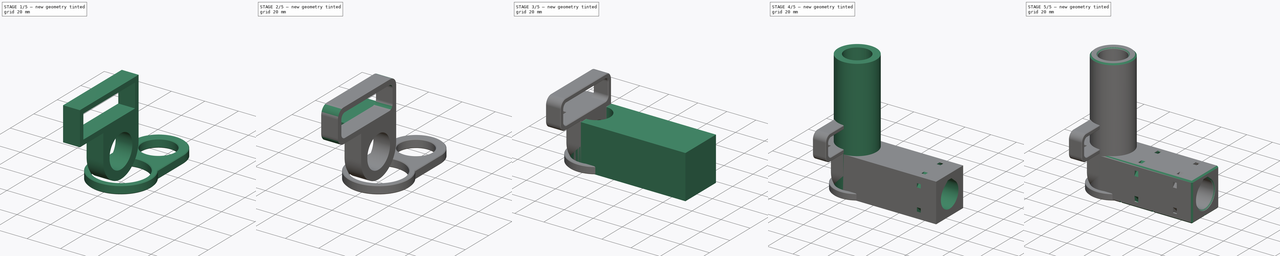
[diagram: build sequence overview — one tinted view per stage of 5, left to right]
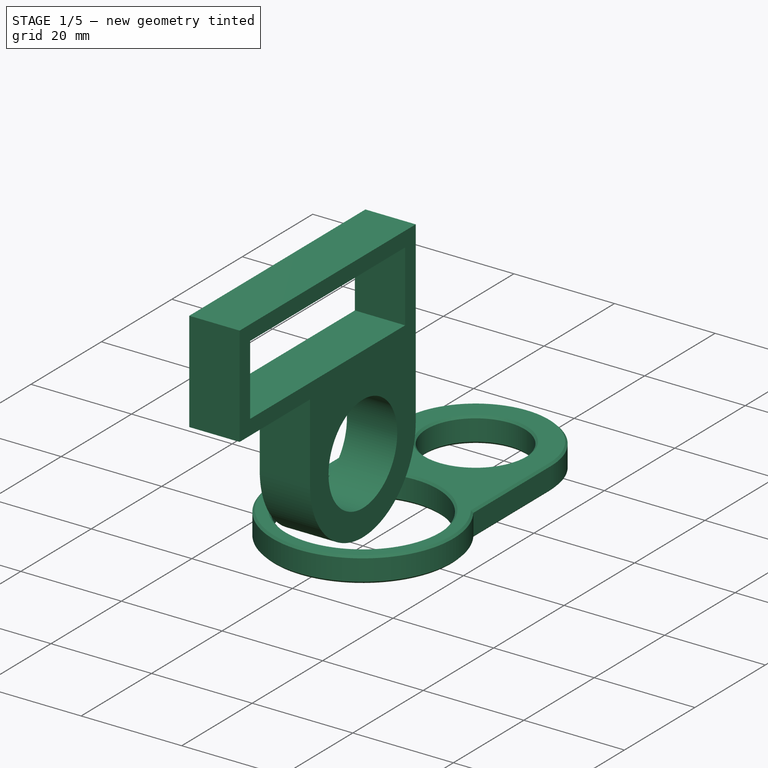
[diagram: stage 1 of 5 — iso view after this stage's code; geometry added in this stage tinted green]
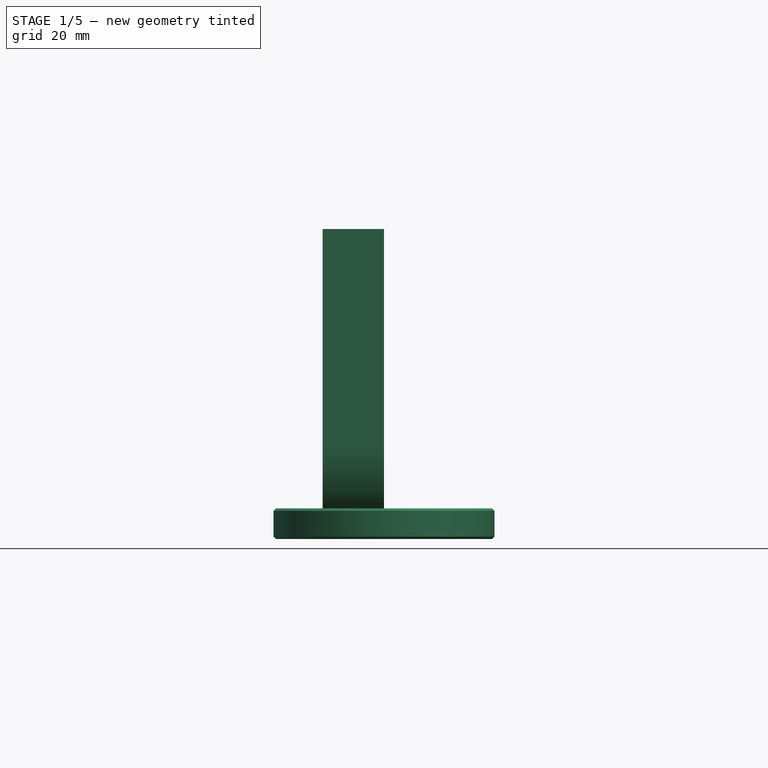
[diagram: stage 1 of 5 — front view after this stage's code; geometry added in this stage tinted green]
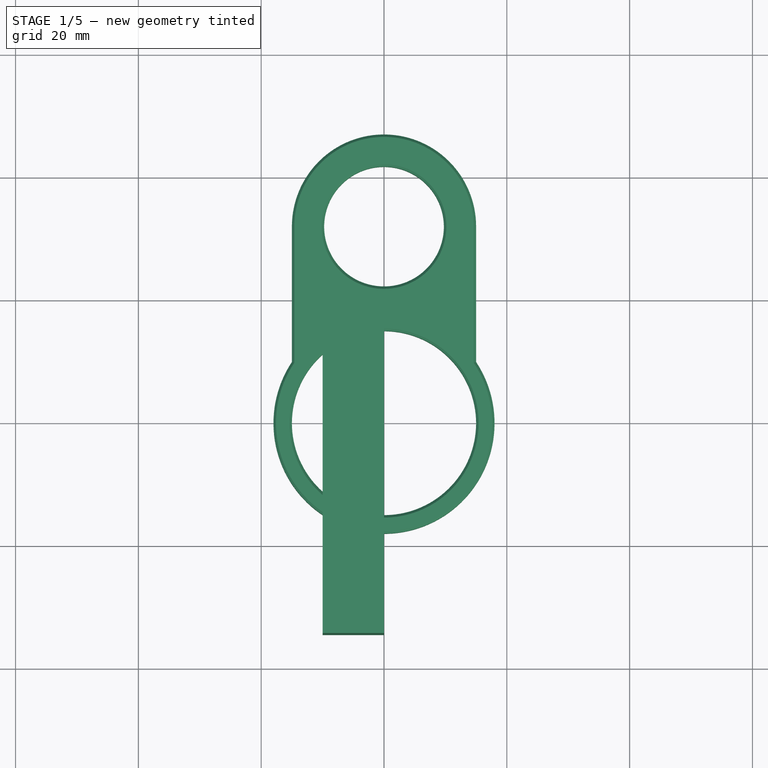
[diagram: stage 1 of 5 — top view after this stage's code; geometry added in this stage tinted green]
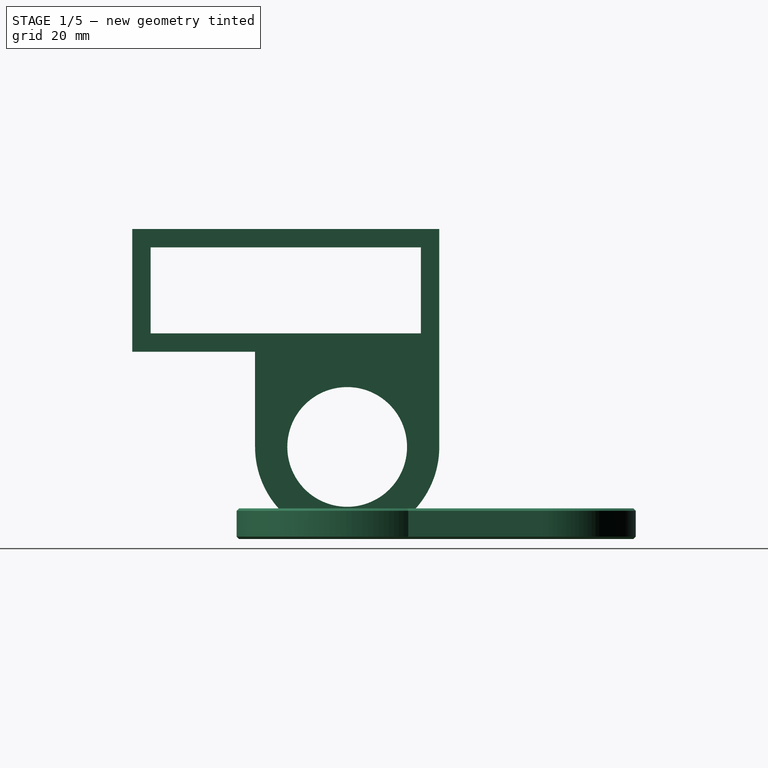
[diagram: stage 1 of 5 — right view after this stage's code; geometry added in this stage tinted green]
FCSTD DOCUMENT  (FreeCAD 0.19R24291 (Git))
Label: sever-rack-pipe-connector
License: Other
LicenseURL: GPL3
objects: Sketcher::SketchObject×8, PartDesign::Pad×5, PartDesign::Pocket×3, PartDesign::Chamfer×3, PartDesign::Body×3, PartDesign::Fillet×3, PartDesign::Plane×1, PartDesign::LinearPattern×1
note: 41 computed .brp shape members not serialized (recipe doc carries the construction recipe); baked Part::Feature solids carry a one-line shape summary decoded from their .brp

FEATURE [PartDesign::Body] Body
  Group = -> [Sketch,Pad,Sketch001,Pocket,Sketch005,Pad002,DatumPlane,Sketch006,Pocket001,LinearPattern,Sketch007,Pocket002,Chamfer]
  Origin = -> Origin
  Tip = -> Chamfer
FEATURE [Sketcher::SketchObject] Sketch008
  FullyConstrained = true
  MapMode = 5
  Placement = pos=(0,0,0) rot=(0.57735,0.57735,0.57735;2.0944rad)
  Support = -> [YZ_Plane001]
  sketch-geometry (11):
    g0: ArcOfCircle CenterX=0 CenterY=15 CenterZ=0 NormalX=0 NormalY=0 NormalZ=1 AngleXU=0 Radius=15 StartAngle=3.14159 EndAngle=6.28319
    g1: Circle CenterX=0 CenterY=15 CenterZ=0 NormalX=0 NormalY=0 NormalZ=1 AngleXU=0 Radius=9.75
    g2: LineSegment StartX=-15 StartY=15 StartZ=0 EndX=-15 EndY=30.5 EndZ=0
    g3: LineSegment StartX=-15 StartY=30.5 StartZ=0 EndX=-35 EndY=30.5 EndZ=0
    g4: LineSegment StartX=-35 StartY=30.5 StartZ=0 EndX=-35 EndY=50.5 EndZ=0
    g5: LineSegment StartX=-35 StartY=50.5 StartZ=0 EndX=15 EndY=50.5 EndZ=0
    g6: LineSegment StartX=15 StartY=50.5 StartZ=0 EndX=15 EndY=15 EndZ=0
    g7: LineSegment StartX=-32 StartY=47.5 StartZ=0 EndX=12 EndY=47.5 EndZ=0
    g8: LineSegment StartX=12 StartY=47.5 StartZ=0 EndX=12 EndY=33.5 EndZ=0
    g9: LineSegment StartX=12 StartY=33.5 StartZ=0 EndX=-32 EndY=33.5 EndZ=0
    g10: LineSegment StartX=-32 StartY=33.5 StartZ=0 EndX=-32 EndY=47.5 EndZ=0
  constraints (33):
    c: PointOnObject(g0,g-2)
    c: Coincident(g1,g0)
    c: Radius(g1) = 9.75
    c: Radius(g0) = 15
    c: DistanceY(g-1,g0) = 15
    c: Vertical(g2)
    c: Coincident(g2,g3)
    c: Horizontal(g3)
    c: Coincident(g3,g4)
    c: Vertical(g4)
    c: Coincident(g4,g5)
    c: Horizontal(g5)
    c: Vertical(g6)
    c: Horizontal(g2,g0)
    c: Horizontal(g0,g6)
    c: DistanceY(g2,g2) = 15.5
    c: DistanceX(g3,g3) = 20
    c: Coincident(g5,g6)
    c: DistanceY(g4,g4) = 20
    c: Coincident(g0,g2)
    c: Coincident(g0,g6)
    c: Coincident(g7,g8)
    c: Coincident(g8,g9)
    c: Coincident(g9,g10)
    c: Coincident(g10,g7)
    c: Horizontal(g7)
    c: Horizontal(g9)
    c: Vertical(g8)
    c: Vertical(g10)
    c: DistanceX(g3,g9) = 3
    c: DistanceX(g7,g5) = 3
    c: DistanceY(g7,g4) = 3
    c: DistanceY(g3,g9) = 3
FEATURE [PartDesign::Pad] Pad003
  Direction = (1,1,1)
  Length = 10
  Length2 = 100
  Placement = pos=(0,0,0) rot=(0.57735,0.57735,0.57735;2.0944rad)
  Profile = -> Sketch008
  Reversed = true
  Type = 0
FEATURE [PartDesign::Body] Body001
  Group = -> [Sketch008,Pad003,Fillet,Fillet001,Sketch009,Pad004,Fillet002,Chamfer001]
  Origin = -> Origin001
  Placement = pos=(82,0,0) rot=(0,0,1;0rad)
  Tip = -> Chamfer001
FEATURE [Sketcher::SketchObject] Sketch010
  FullyConstrained = false
  MapMode = 5
  Support = -> [XY_Plane002]
  sketch-geometry (6):
    g0: Circle CenterX=0 CenterY=32 CenterZ=0 NormalX=0 NormalY=0 NormalZ=1 AngleXU=0 Radius=9.75
    g1: ArcOfCircle CenterX=0 CenterY=0 CenterZ=0 NormalX=0 NormalY=0 NormalZ=1 AngleXU=0 Radius=18 StartAngle=2.55591 EndAngle=6.86887
    g2: Circle CenterX=0 CenterY=0 CenterZ=0 NormalX=0 NormalY=0 NormalZ=1 AngleXU=0 Radius=15
    g3: LineSegment StartX=-15 StartY=32 StartZ=0 EndX=-15 EndY=9.94987 EndZ=0
    g4: LineSegment StartX=15 StartY=32 StartZ=0 EndX=15 EndY=9.94987 EndZ=0
    g5: ArcOfCircle CenterX=0 CenterY=32 CenterZ=0 NormalX=0 NormalY=0 NormalZ=1 AngleXU=0 Radius=15 StartAngle=0 EndAngle=3.14159
  constraints (13):
    c: Radius(g0) = 9.75
    c: PointOnObject(g1,g-2)
    c: Coincident(g2,g1)
    c: Radius(g2) = 15
    c: Radius(g1) = 18
    c: DistanceY(g-1,g1) = 0
    c: Vertical(g3)
    c: Vertical(g4)
    c: Horizontal(g3,g4)
    c: Coincident(g5,g3) = -1.5708
    c: Coincident(g5,g4)
    c: Coincident(g1,g4)
    c: Coincident(g1,g3)
FEATURE [PartDesign::Pad] Pad005
  Direction = (1,1,1)
  Length = 5
  Length2 = 100
  Profile = -> Sketch010
  Type = 0
FEATURE [PartDesign::Chamfer] Chamfer002
  Angle = 45
  Base = -> Pad005 [Face8,Face7]
  BaseFeature = -> Pad005
  ChamferType = 0
  FlipDirection = false
  Size = 0.4
  Size2 = 1
  SupportTransform = false
FEATURE [PartDesign::Body] Body002
  Group = -> [Sketch010,Pad005,Chamfer002]
  Origin = -> Origin002
  Tip = -> Chamfer002
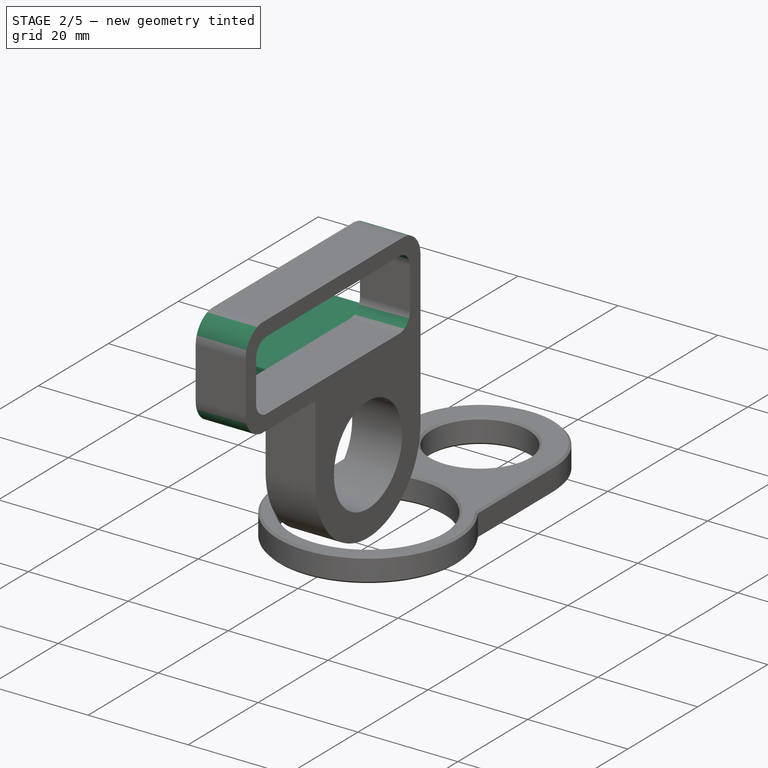
[diagram: stage 2 of 5 — iso view after this stage's code; geometry added in this stage tinted green]
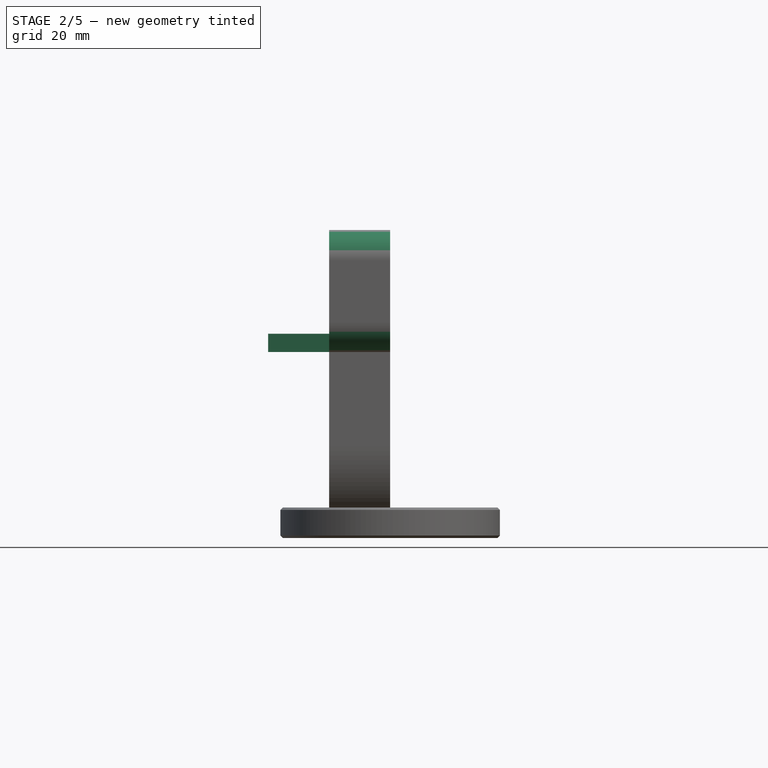
[diagram: stage 2 of 5 — front view after this stage's code; geometry added in this stage tinted green]
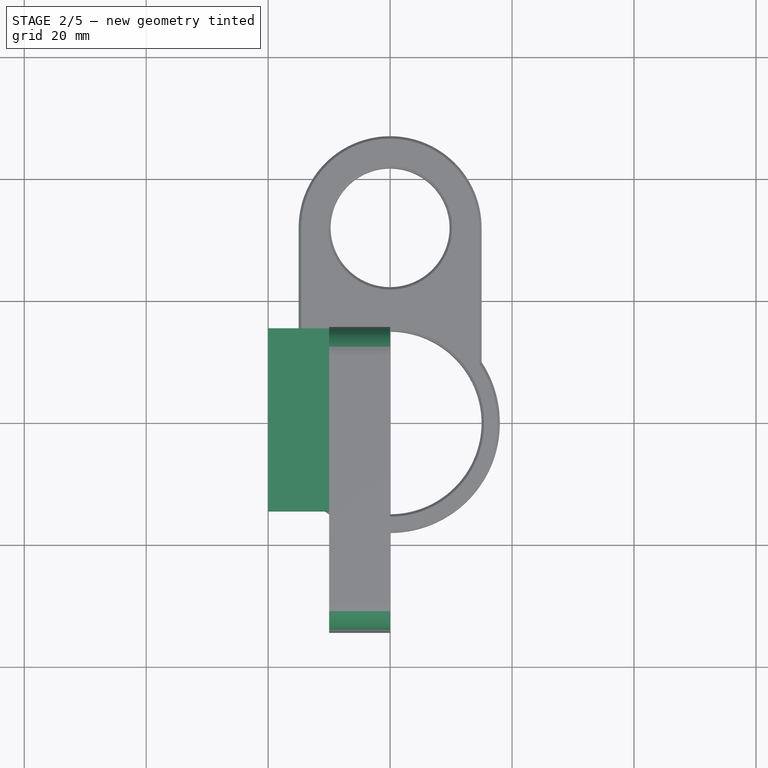
[diagram: stage 2 of 5 — top view after this stage's code; geometry added in this stage tinted green]
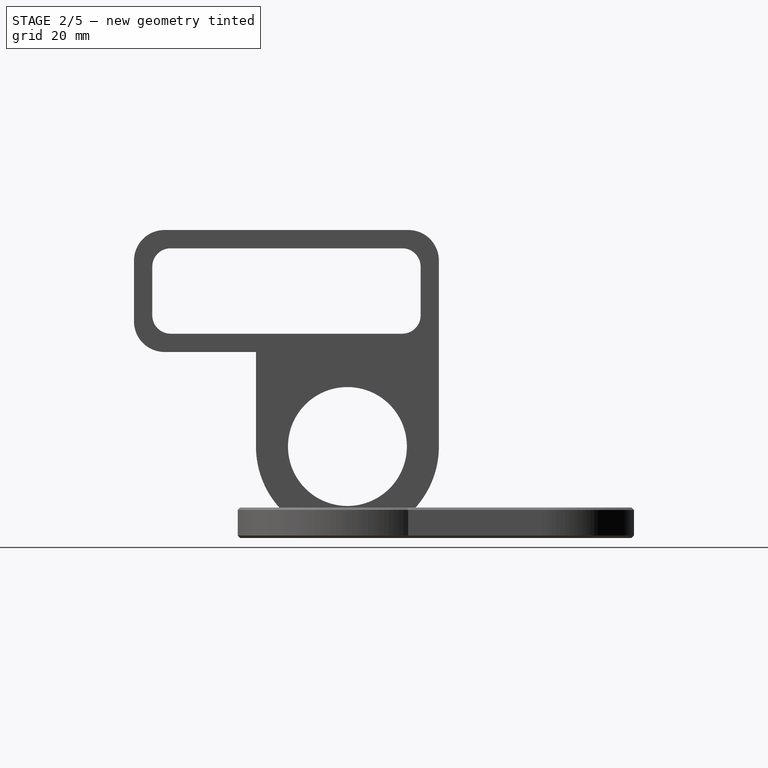
[diagram: stage 2 of 5 — right view after this stage's code; geometry added in this stage tinted green]
FEATURE [PartDesign::Fillet] Fillet
  Base = -> Pad003 [Edge19,Edge20,Edge23,Edge26]
  BaseFeature = -> Pad003
  Placement = pos=(0,0,0) rot=(0.57735,0.57735,0.57735;2.0944rad)
  Radius = 3
  SupportTransform = false
FEATURE [PartDesign::Fillet] Fillet001
  Base = -> Fillet [Edge42,Edge43,Edge44]
  BaseFeature = -> Fillet
  Placement = pos=(0,0,0) rot=(0.57735,0.57735,0.57735;2.0944rad)
  Radius = 5
  SupportTransform = false
FEATURE [Sketcher::SketchObject] Sketch009
  FullyConstrained = true
  MapMode = 5
  Placement = pos=(-10,4.4e-15,-3.3e-15) rot=(0.57735,0.57735,-0.57735;4.18879rad)
  Support = -> [Fillet001]
  sketch-geometry (4):
    g0: LineSegment StartX=-15 StartY=-30.5 StartZ=0 EndX=15 EndY=-30.5 EndZ=0
    g1: LineSegment StartX=15 StartY=-30.5 StartZ=0 EndX=15 EndY=-33.5 EndZ=0
    g2: LineSegment StartX=15 StartY=-33.5 StartZ=0 EndX=-15 EndY=-33.5 EndZ=0
    g3: LineSegment StartX=-15 StartY=-33.5 StartZ=0 EndX=-15 EndY=-30.5 EndZ=0
  constraints (12):
    c: Coincident(g0,g1)
    c: Coincident(g1,g2)
    c: Coincident(g2,g3)
    c: Coincident(g3,g0)
    c: Horizontal(g0)
    c: Horizontal(g2)
    c: Vertical(g1)
    c: Vertical(g3)
    c: DistanceY(g1,g1) = 3
    c: DistanceX(g0,g0) = 30
    c: DistanceX(g0,g-1) = 15
    c: DistanceY(g0,g-1) = 30.5
FEATURE [PartDesign::Pad] Pad004
  BaseFeature = -> Fillet001
  Direction = (1,1,1)
  Length = 10
  Length2 = 100
  Placement = pos=(0,0,0) rot=(0.57735,0.57735,0.57735;2.0944rad)
  Profile = -> Sketch009
  Type = 0
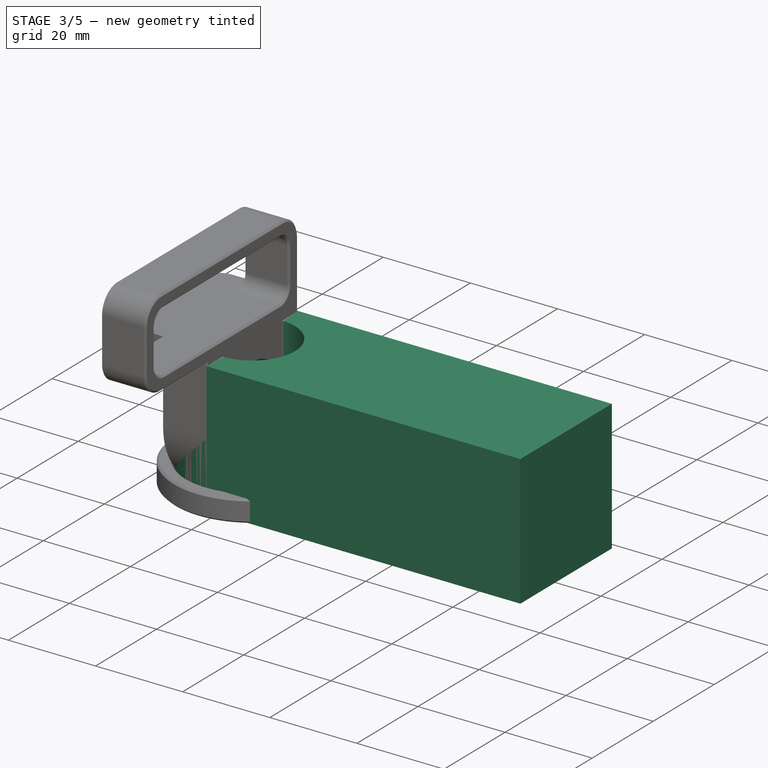
[diagram: stage 3 of 5 — iso view after this stage's code; geometry added in this stage tinted green]
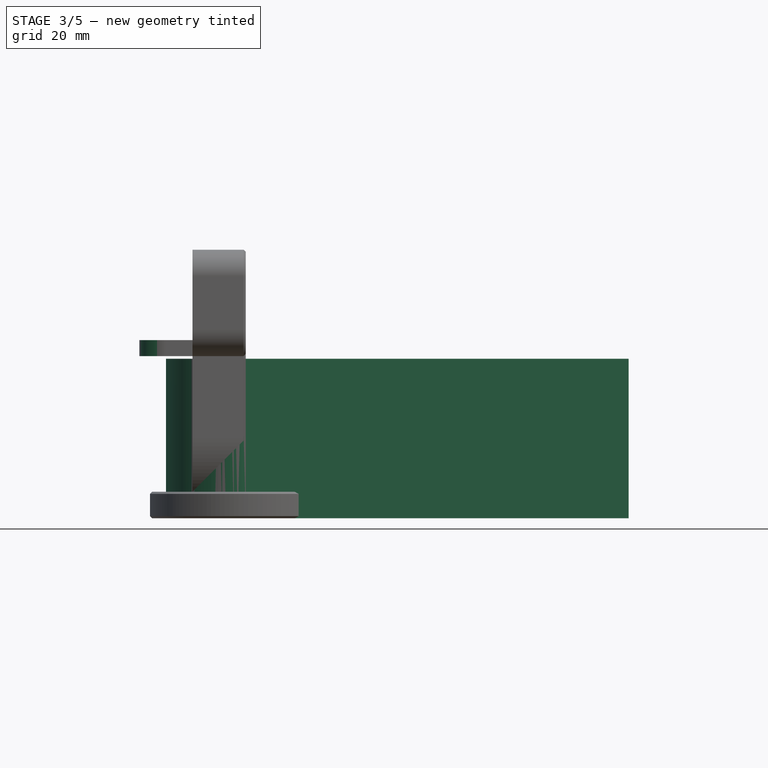
[diagram: stage 3 of 5 — front view after this stage's code; geometry added in this stage tinted green]
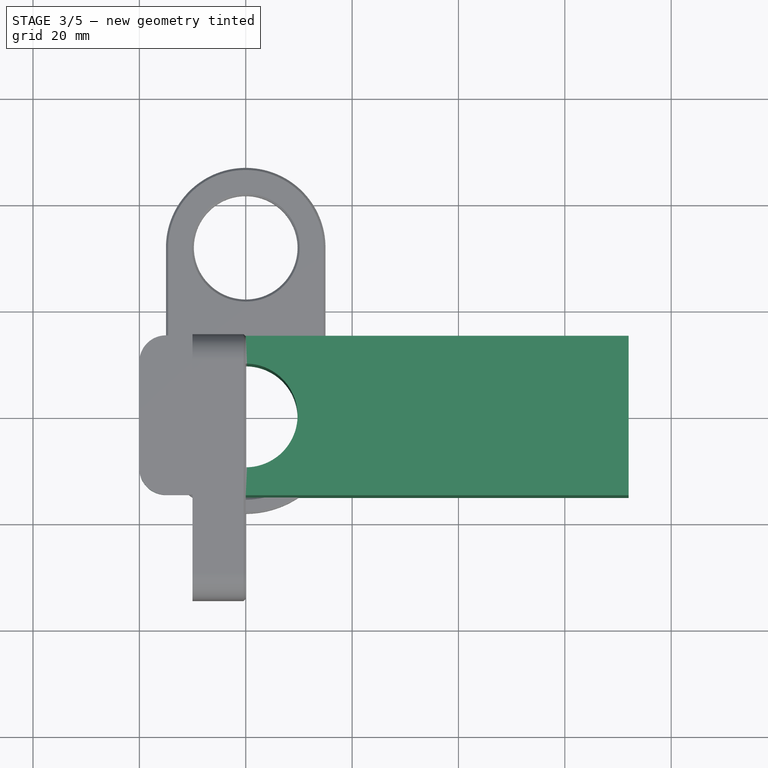
[diagram: stage 3 of 5 — top view after this stage's code; geometry added in this stage tinted green]
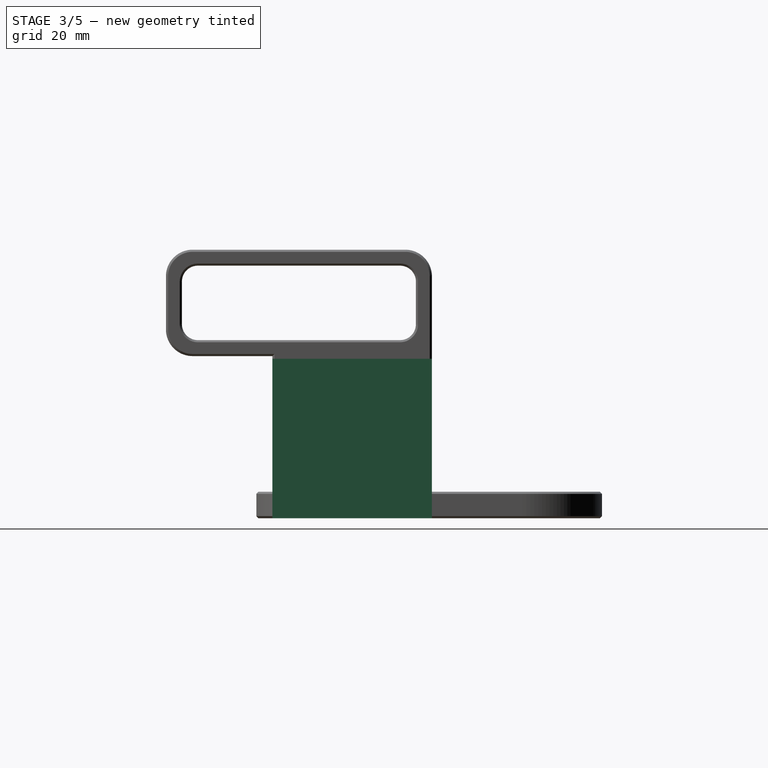
[diagram: stage 3 of 5 — right view after this stage's code; geometry added in this stage tinted green]
FEATURE [Sketcher::SketchObject] Sketch
  FullyConstrained = true
  MapMode = 5
  Support = -> [XY_Plane]
  sketch-geometry (5):
    g0: Circle CenterX=0 CenterY=0 CenterZ=0 NormalX=0 NormalY=0 NormalZ=1 AngleXU=0 Radius=9.75
    g1: ArcOfCircle CenterX=0 CenterY=0 CenterZ=0 NormalX=0 NormalY=0 NormalZ=1 AngleXU=0 Radius=15 StartAngle=1.5708 EndAngle=4.71239
    g2: LineSegment StartX=0 StartY=15 StartZ=0 EndX=72 EndY=15 EndZ=0
    g3: LineSegment StartX=72 StartY=15 StartZ=0 EndX=72 EndY=-15 EndZ=0
    g4: LineSegment StartX=72 StartY=-15 StartZ=0 EndX=0 EndY=-15 EndZ=0
  constraints (13):
    c: Coincident(g0,g-1)
    c: Radius(g0) = 9.75
    c: Coincident(g1,g0)
    c: Vertical(g1,g0)
    c: Vertical(g0,g1)
    c: DistanceY(g1,g0) = 15
    c: Tangent(g1,g2) = 1.5708
    c: Coincident(g2,g3)
    c: Vertical(g3)
    c: Coincident(g3,g4)
    c: Coincident(g4,g1)
    c: Horizontal(g4)
    c: DistanceX(g2,g2) = 72
FEATURE [PartDesign::Pad] Pad
  Direction = (1,1,1)
  Length = 30
  Length2 = 100
  Profile = -> Sketch
  Type = 0
FEATURE [PartDesign::Fillet] Fillet002
  Base = -> Pad004 [Edge62,Edge67]
  BaseFeature = -> Pad004
  Placement = pos=(0,0,0) rot=(0.57735,0.57735,0.57735;2.0944rad)
  Radius = 5
  SupportTransform = false
FEATURE [PartDesign::Chamfer] Chamfer001
  Angle = 45
  Base = -> Fillet002 [Face10,Edge27]
  BaseFeature = -> Fillet002
  ChamferType = 0
  FlipDirection = false
  Placement = pos=(0,0,0) rot=(0.57735,0.57735,0.57735;2.0944rad)
  Size = 0.4
  Size2 = 1
  SupportTransform = false
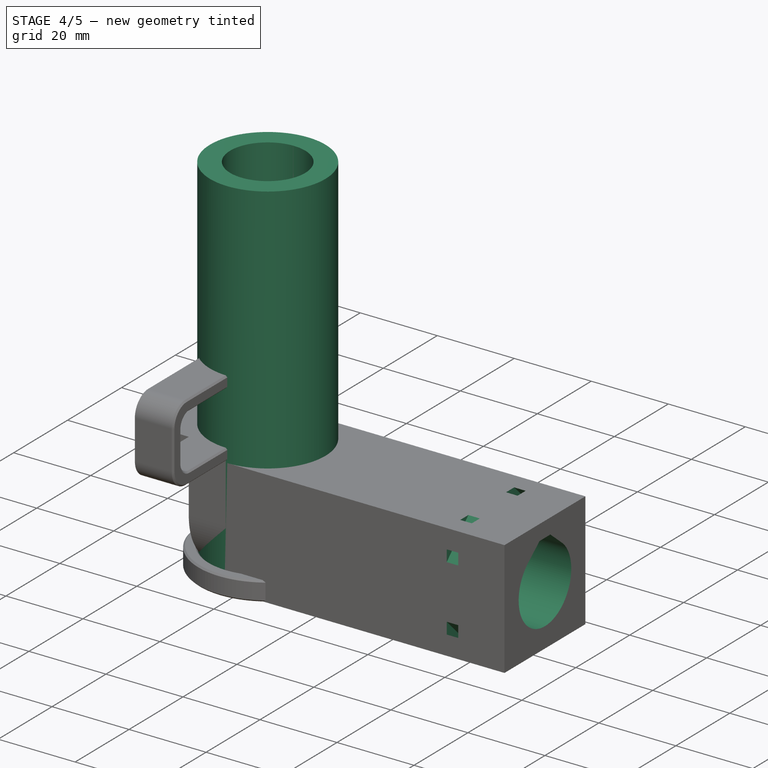
[diagram: stage 4 of 5 — iso view after this stage's code; geometry added in this stage tinted green]
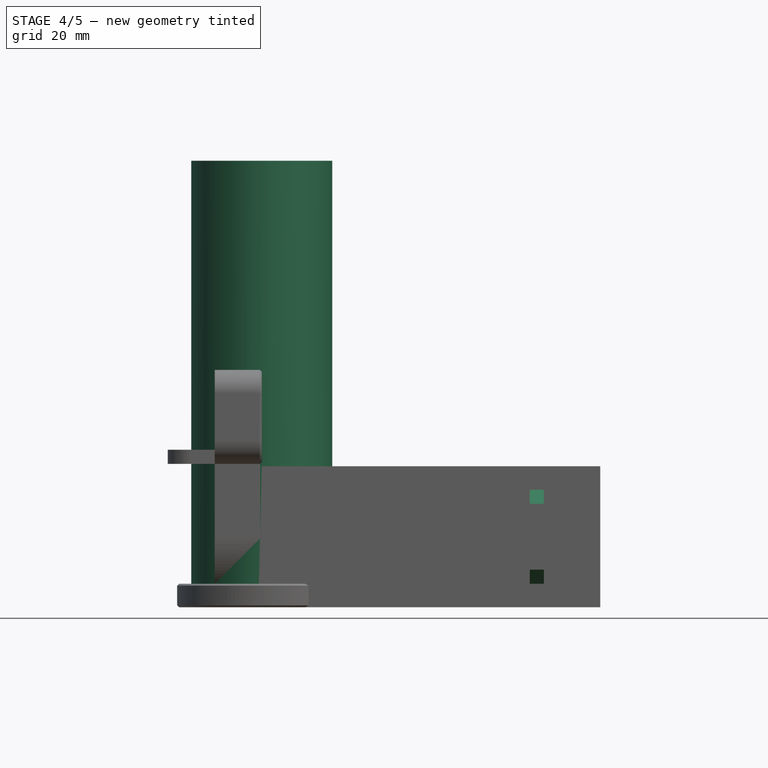
[diagram: stage 4 of 5 — front view after this stage's code; geometry added in this stage tinted green]
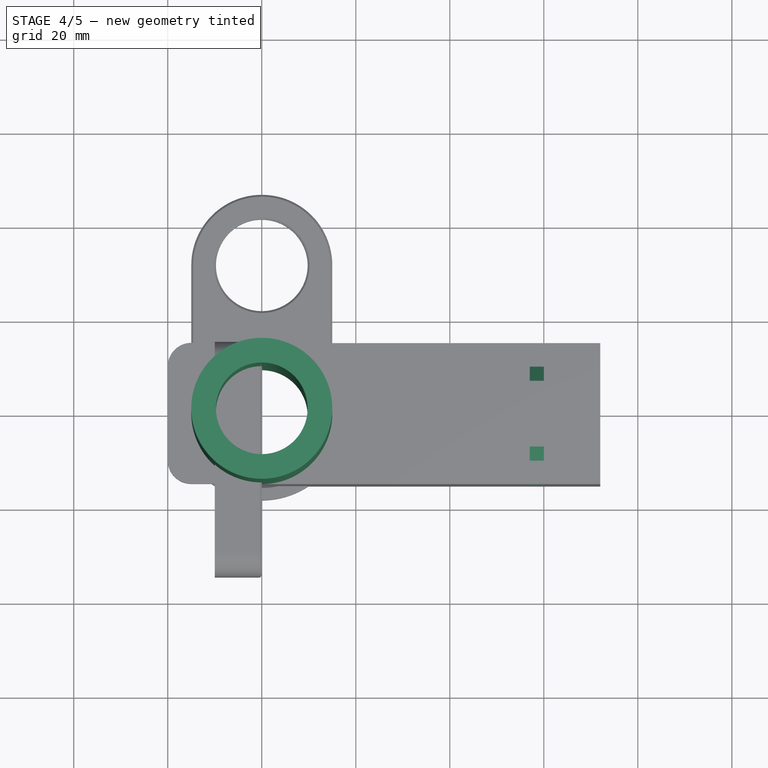
[diagram: stage 4 of 5 — top view after this stage's code; geometry added in this stage tinted green]
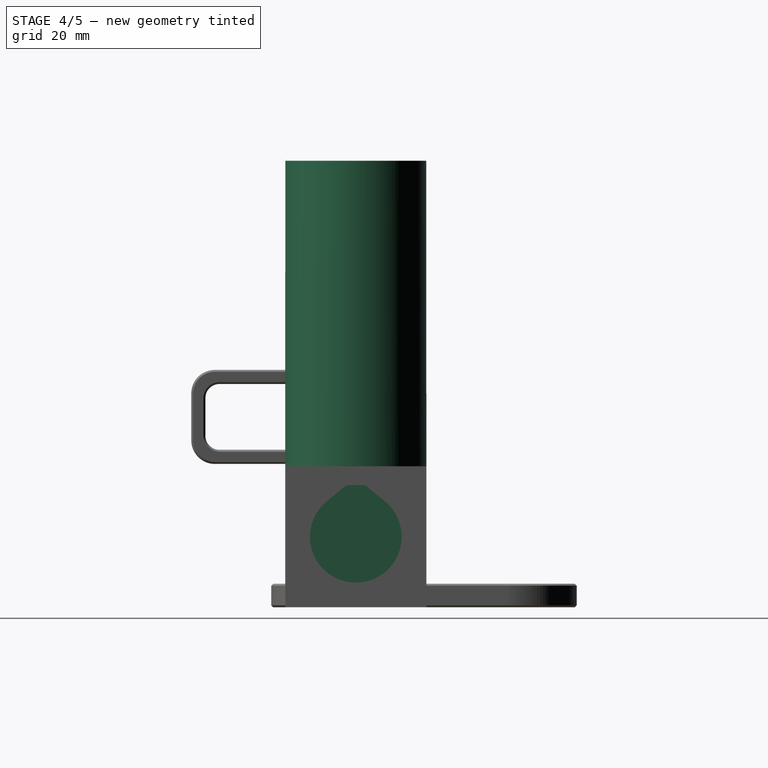
[diagram: stage 4 of 5 — right view after this stage's code; geometry added in this stage tinted green]
FEATURE [Sketcher::SketchObject] Sketch001
  FullyConstrained = true
  MapMode = 5
  Placement = pos=(72,0,0) rot=(0.57735,0.57735,0.57735;2.0944rad)
  Support = -> [Pad]
  sketch-geometry (4):
    g0: ArcOfCircle CenterX=0 CenterY=15 CenterZ=0 NormalX=0 NormalY=0 NormalZ=1 AngleXU=0 Radius=9.75 StartAngle=2.26204 EndAngle=7.16274
    g1: LineSegment StartX=-2 StartY=26 StartZ=0 EndX=2 EndY=26 EndZ=0
    g2: LineSegment StartX=-2 StartY=26 StartZ=0 EndX=-6.21556 EndY=22.5119 EndZ=0
    g3: LineSegment StartX=2 StartY=26 StartZ=0 EndX=6.21556 EndY=22.5119 EndZ=0
  constraints (11):
    c: PointOnObject(g0,g-2)
    c: DistanceY(g-1,g0) = 15
    c: Radius(g0) = 9.75
    c: Horizontal(g1)
    c: DistanceX(g1,g0) = 2
    c: DistanceX(g0,g1) = 2
    c: Coincident(g2,g1)
    c: Coincident(g3,g1)
    c: DistanceY(g0,g1) = 11
    c: Tangent(g0,g2) = -1.5708
    c: Tangent(g0,g3) = 1.5708
FEATURE [PartDesign::Pocket] Pocket
  BaseFeature = -> Pad
  Length = 55
  Length2 = 100
  Profile = -> Sketch001
  Type = 0
FEATURE [Sketcher::SketchObject] Sketch005
  FullyConstrained = true
  MapMode = 5
  Placement = pos=(0,0,30) rot=(0,0,1;0rad)
  Support = -> [Pocket]
  sketch-geometry (2):
    g0: Circle CenterX=0 CenterY=0 CenterZ=0 NormalX=0 NormalY=0 NormalZ=1 AngleXU=0 Radius=9.75
    g1: Circle CenterX=0 CenterY=0 CenterZ=0 NormalX=0 NormalY=0 NormalZ=1 AngleXU=0 Radius=15
  constraints (4):
    c: Coincident(g0,g-1)
    c: Coincident(g1,g0)
    c: Radius(g0) = 9.75
    c: Radius(g1) = 15
FEATURE [PartDesign::Pad] Pad002
  BaseFeature = -> Pocket
  Direction = (1,1,1)
  Length = 65
  Length2 = 100
  Profile = -> Sketch005
  Refine = true
  Type = 0
FEATURE [PartDesign::Plane] DatumPlane
  AttachmentOffset = pos=(0,0,60) rot=(0,0,1;0rad)
  Length = 65.4919
  MapMode = 5
  Placement = pos=(60,-1.33e-14,1.33e-14) rot=(0.57735,0.57735,0.57735;2.0944rad)
  ResizeMode = 0
  Support = -> [YZ_Plane]
  Width = 135.492
FEATURE [Sketcher::SketchObject] Sketch006
  FullyConstrained = false
  MapMode = 5
  Placement = pos=(60,-1.33e-14,1.33e-14) rot=(0.57735,0.57735,0.57735;2.0944rad)
  Support = -> [DatumPlane]
  sketch-geometry (16):
    g0: LineSegment StartX=10 StartY=0 StartZ=0 EndX=15 EndY=5 EndZ=0
    g1: LineSegment StartX=15 StartY=5 StartZ=0 EndX=15 EndY=8 EndZ=0
    g2: LineSegment StartX=15 StartY=8 StartZ=0 EndX=7 EndY=0 EndZ=0
    g3: LineSegment StartX=7 StartY=0 StartZ=0 EndX=10 EndY=0 EndZ=0
    g4: LineSegment StartX=-10 StartY=0 StartZ=0 EndX=-15 EndY=5 EndZ=0
    g5: LineSegment StartX=-15 StartY=5 StartZ=0 EndX=-15 EndY=8 EndZ=0
    g6: LineSegment StartX=-15 StartY=8 StartZ=0 EndX=-7 EndY=0 EndZ=0
    g7: LineSegment StartX=-7 StartY=0 StartZ=0 EndX=-10 EndY=0 EndZ=0
    g8: LineSegment StartX=10 StartY=30 StartZ=0 EndX=15 EndY=25 EndZ=0
    g9: LineSegment StartX=15 StartY=25 StartZ=0 EndX=15 EndY=22 EndZ=0
    g10: LineSegment StartX=15 StartY=22 StartZ=0 EndX=7 EndY=30 EndZ=0
    g11: LineSegment StartX=7 StartY=30 StartZ=0 EndX=10 EndY=30 EndZ=0
    g12: LineSegment StartX=-15 StartY=25 StartZ=0 EndX=-10 EndY=30 EndZ=0
    g13: LineSegment StartX=-10 StartY=30 StartZ=0 EndX=-7 EndY=30 EndZ=0
    g14: LineSegment StartX=-7 StartY=30 StartZ=0 EndX=-15 EndY=22 EndZ=0
    g15: LineSegment StartX=-15 StartY=22 StartZ=0 EndX=-15 EndY=25 EndZ=0
  constraints (26):
    c: PointOnObject(g0,g-1)
    c: Coincident(g0,g1)
    c: Vertical(g1)
    c: Coincident(g1,g2)
    c: Coincident(g2,g3)
    c: PointOnObject(g3,g-1)
    c: Horizontal(g3)
    c: PointOnObject(g4,g-1)
    c: Coincident(g4,g5)
    c: Vertical(g5)
    c: Coincident(g5,g6)
    c: PointOnObject(g6,g-1)
    c: Coincident(g6,g7)
    c: Coincident(g7,g4)
    c: Coincident(g8,g9)
    c: Vertical(g9)
    c: Coincident(g9,g10)
    c: Coincident(g10,g11)
    c: Coincident(g11,g8)
    c: Horizontal(g11)
    c: Coincident(g12,g13)
    c: Horizontal(g13)
    c: Coincident(g13,g14)
    c: Coincident(g14,g15)
    c: Coincident(g15,g12)
    c: Vertical(g15)
FEATURE [PartDesign::Pocket] Pocket001
  BaseFeature = -> Pad002
  Length = 3
  Length2 = 100
  Profile = -> Sketch006
  Type = 0
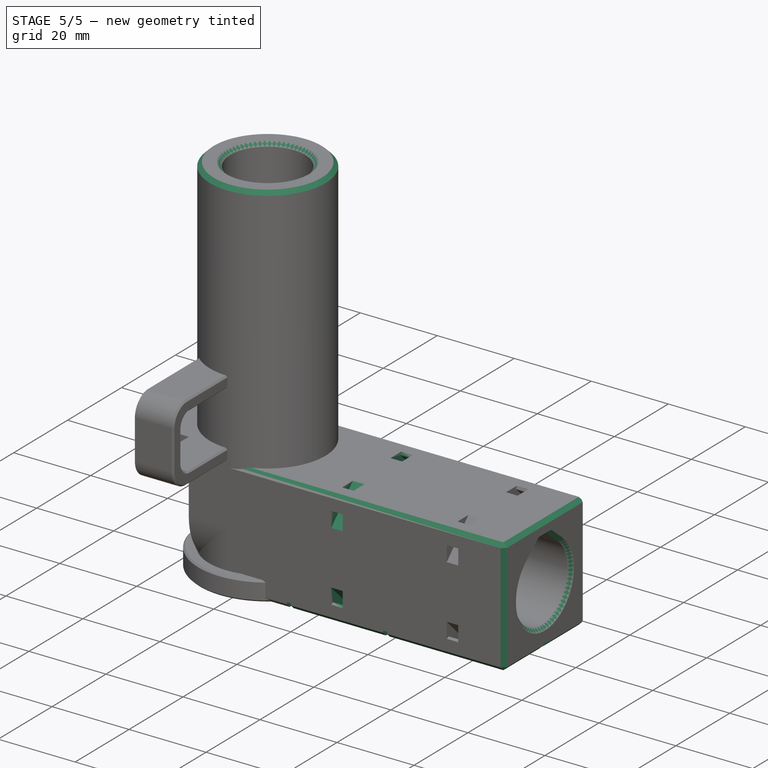
[diagram: stage 5 of 5 — iso view after this stage's code; geometry added in this stage tinted green]
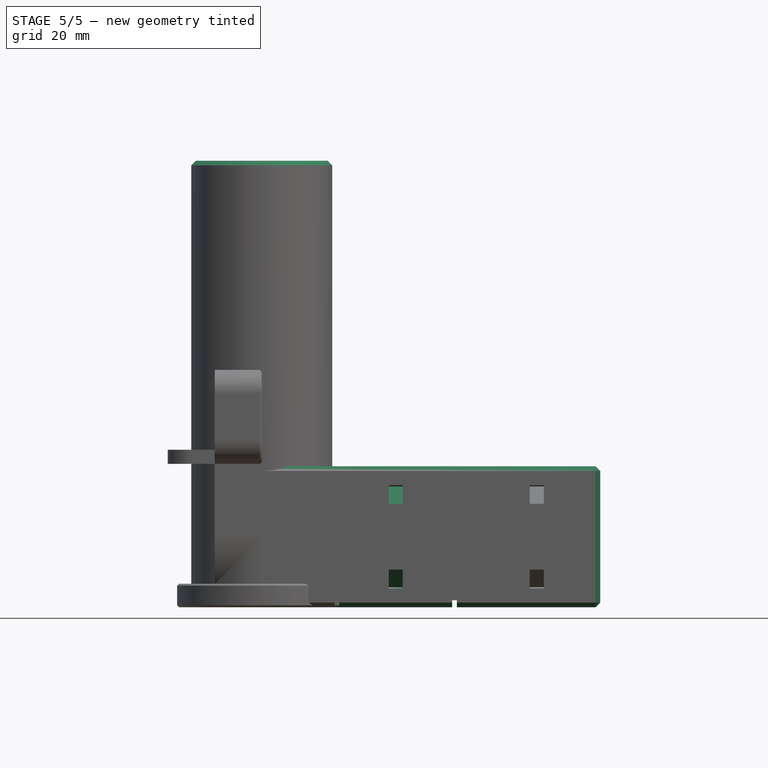
[diagram: stage 5 of 5 — front view after this stage's code; geometry added in this stage tinted green]
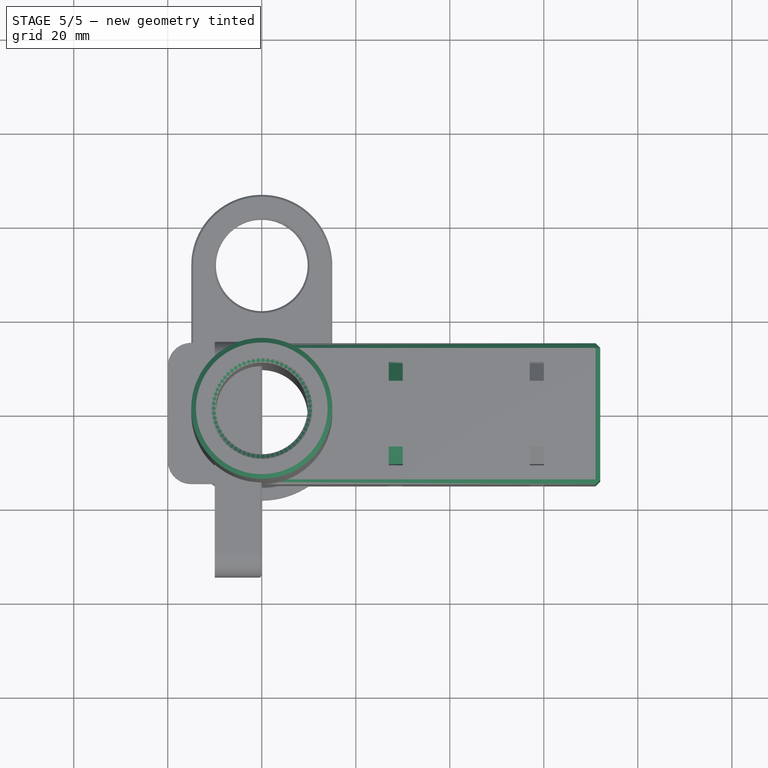
[diagram: stage 5 of 5 — top view after this stage's code; geometry added in this stage tinted green]
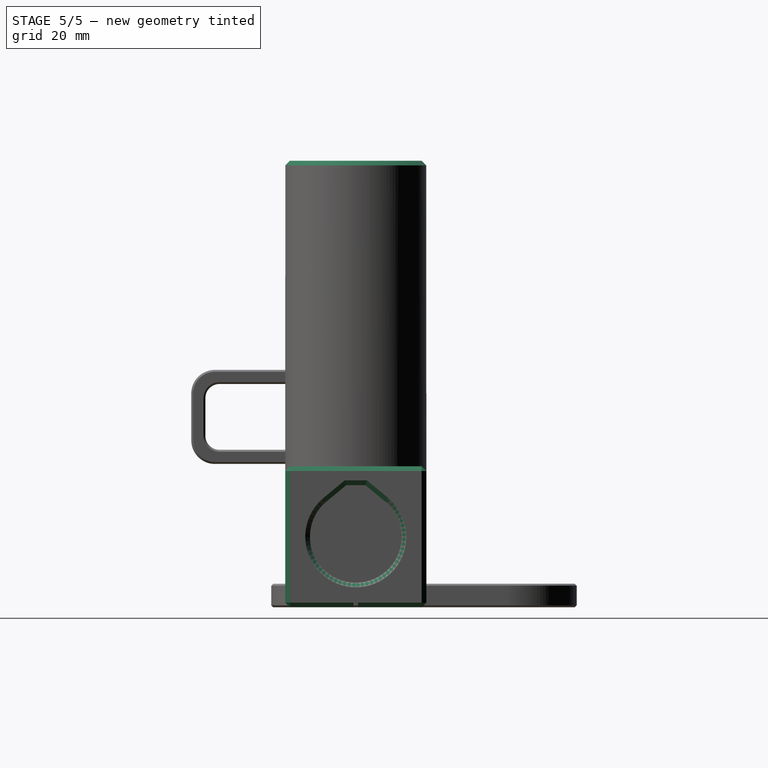
[diagram: stage 5 of 5 — right view after this stage's code; geometry added in this stage tinted green]
FEATURE [PartDesign::LinearPattern] LinearPattern
  BaseFeature = -> Pocket001
  Direction = -> X_Axis
  Length = 30
  Occurrences = 2
  Originals = -> [Pocket001]
  Refine = true
  Reversed = true
FEATURE [Sketcher::SketchObject] Sketch007
  FullyConstrained = false
  MapMode = 5
  Placement = pos=(0,0,0) rot=(1,0,0;3.14159rad)
  Support = -> [LinearPattern]
  sketch-geometry (28):
    g0: LineSegment StartX=-16 StartY=0.5 StartZ=0 EndX=-16 EndY=-0.5 EndZ=0
    g1: LineSegment StartX=-16 StartY=-0.5 StartZ=0 EndX=-0.5 EndY=-0.5 EndZ=0
    g2: LineSegment StartX=-0.5 StartY=-0.5 StartZ=0 EndX=-0.5 EndY=-16 EndZ=0
    g3: LineSegment StartX=-0.5 StartY=-16 StartZ=0 EndX=0.5 EndY=-16 EndZ=0
    g4: LineSegment StartX=0.5 StartY=-16 StartZ=0 EndX=0.5 EndY=-0.5 EndZ=0
    g5: LineSegment StartX=0.5 StartY=-0.5 StartZ=0 EndX=15.5 EndY=-0.5 EndZ=0
    g6: LineSegment StartX=15.5 StartY=-0.5 StartZ=0 EndX=15.5 EndY=-16 EndZ=0
    g7: LineSegment StartX=15.5 StartY=-16 StartZ=0 EndX=16.5 EndY=-16 EndZ=0
    g8: LineSegment StartX=16.5 StartY=-16 StartZ=0 EndX=16.5 EndY=-0.5 EndZ=0
    g9: LineSegment StartX=16.5 StartY=-0.5 StartZ=0 EndX=40.5 EndY=-0.5 EndZ=0
    g10: LineSegment StartX=40.5 StartY=-0.5 StartZ=0 EndX=40.5 EndY=-16 EndZ=0
    g11: LineSegment StartX=40.5 StartY=-16 StartZ=0 EndX=41.5 EndY=-16 EndZ=0
    g12: LineSegment StartX=41.5 StartY=-16 StartZ=0 EndX=41.5 EndY=-0.5 EndZ=0
    g13: LineSegment StartX=41.5 StartY=-0.5 StartZ=0 EndX=72.5 EndY=-0.5 EndZ=0
    g14: LineSegment StartX=72.5 StartY=-0.5 StartZ=0 EndX=72.5 EndY=0.5 EndZ=0
    g15: LineSegment StartX=72.5 StartY=0.5 StartZ=0 EndX=41.5 EndY=0.5 EndZ=0
    g16: LineSegment StartX=41.5 StartY=0.5 StartZ=0 EndX=41.5 EndY=16 EndZ=0
    g17: LineSegment StartX=41.5 StartY=16 StartZ=0 EndX=40.5 EndY=16 EndZ=0
    g18: LineSegment StartX=40.5 StartY=16 StartZ=0 EndX=40.5 EndY=0.5 EndZ=0
    g19: LineSegment StartX=40.5 StartY=0.5 StartZ=0 EndX=16.5 EndY=0.5 EndZ=0
    g20: LineSegment StartX=16.5 StartY=0.5 StartZ=0 EndX=16.5 EndY=16 EndZ=0
    g21: LineSegment StartX=16.5 StartY=16 StartZ=0 EndX=15.5 EndY=16 EndZ=0
    g22: LineSegment StartX=15.5 StartY=16 StartZ=0 EndX=15.5 EndY=0.5 EndZ=0
    g23: LineSegment StartX=15.5 StartY=0.5 StartZ=0 EndX=0.5 EndY=0.5 EndZ=0
    g24: LineSegment StartX=0.5 StartY=0.5 StartZ=0 EndX=0.5 EndY=16 EndZ=0
    g25: LineSegment StartX=0.5 StartY=16 StartZ=0 EndX=-0.5 EndY=16 EndZ=0
    g26: LineSegment StartX=-0.5 StartY=16 StartZ=0 EndX=-0.5 EndY=0.5 EndZ=0
    g27: LineSegment StartX=-0.5 StartY=0.5 StartZ=0 EndX=-16 EndY=0.5 EndZ=0
  constraints (83):
    c: Vertical(g0)
    c: Coincident(g0,g1)
    c: Horizontal(g1)
    c: Coincident(g1,g2)
    c: Vertical(g2)
    c: Coincident(g2,g3)
    c: Horizontal(g3)
    c: Coincident(g3,g4)
    c: Vertical(g4)
    c: Coincident(g4,g5)
    c: Horizontal(g5)
    c: Coincident(g5,g6)
    c: Vertical(g6)
    c: Coincident(g6,g7)
    c: Horizontal(g7)
    c: Coincident(g7,g8)
    c: Vertical(g8)
    c: Coincident(g8,g9)
    c: Horizontal(g9)
    c: Coincident(g9,g10)
    c: Vertical(g10)
    c: Coincident(g10,g11)
    c: Horizontal(g11)
    c: Coincident(g11,g12)
    c: Vertical(g12)
    c: Coincident(g12,g13)
    c: Horizontal(g13)
    c: Coincident(g13,g14)
    c: Vertical(g14)
    c: Coincident(g14,g15)
    c: Horizontal(g15)
    c: Coincident(g15,g16)
    c: Vertical(g16)
    c: Coincident(g16,g17)
    c: Horizontal(g17)
    c: Coincident(g17,g18)
    c: Vertical(g18)
    c: Coincident(g18,g19)
    c: Horizontal(g19)
    c: Coincident(g19,g20)
    c: Vertical(g20)
    c: Coincident(g20,g21)
    c: Horizontal(g21)
    c: Coincident(g21,g22)
    c: Vertical(g22)
    c: Coincident(g22,g23)
    c: Horizontal(g23)
    c: Coincident(g23,g24)
    c: Vertical(g24)
    c: Coincident(g24,g25)
    c: Horizontal(g25)
    c: Coincident(g25,g26)
    c: Vertical(g26)
    c: Coincident(g26,g27)
    c: Coincident(g27,g0)
    c: Horizontal(g27)
    c: Vertical(g1,g26)
    c: Vertical(g4,g23)
    c: Vertical(g5,g22)
    c: Vertical(g19,g8)
    c: Vertical(g9,g18)
    c: Vertical(g12,g15)
    c: Horizontal(g1,g5)
    c: Horizontal(g5,g9)
    c: Horizontal(g9,g13)
    c: Horizontal(g0,g23)
    c: Horizontal(g23,g19)
    c: Horizontal(g19,g15)
    c: DistanceY(g0,g0) = 1
    c: DistanceY(g-1,g0) = 0.5
    c: DistanceX(g25,g25) = 1
    c: DistanceX(g21,g21) = 1
    c: DistanceX(g17,g17) = 1
    c: DistanceX(g25,g-1) = 0.5
    c: DistanceX(g24,g21) = 15
    c: DistanceX(g20,g17) = 24
    c: DistanceX(g15,g14) = 31
    c: DistanceY(g-1,g25) = 16
    c: DistanceY(g2,g-1) = 16
    c: Horizontal(g16,g20)
    c: Horizontal(g20,g24)
    c: Horizontal(g3,g7)
    c: Horizontal(g7,g11)
FEATURE [PartDesign::Pocket] Pocket002
  BaseFeature = -> LinearPattern
  Length = 1.5
  Length2 = 100
  Profile = -> Sketch007
  Type = 0
FEATURE [PartDesign::Chamfer] Chamfer
  Angle = 45
  Base = -> Pocket002 [Face44,Edge91,Edge14,Edge31,Edge108,Edge113,Edge112,Edge115,Edge114,Edge13,Edge90,Edge95,Edge97,Edge100,Edge104,Edge28,Edge24,Edge9,Edge5,Edge1,Edge150,Edge157,Edge144,Edge139,Edge142,Edge153,Edge146,Edge84,Edge88,Edge174,Edge170,Edge178,Edge71,Edge198,Edge211,Edge64,Edge36,Edge15,Edge19,Edge111]
  BaseFeature = -> Pocket002
  ChamferType = 0
  FlipDirection = false
  Size = 1
  Size2 = 1
  SupportTransform = false
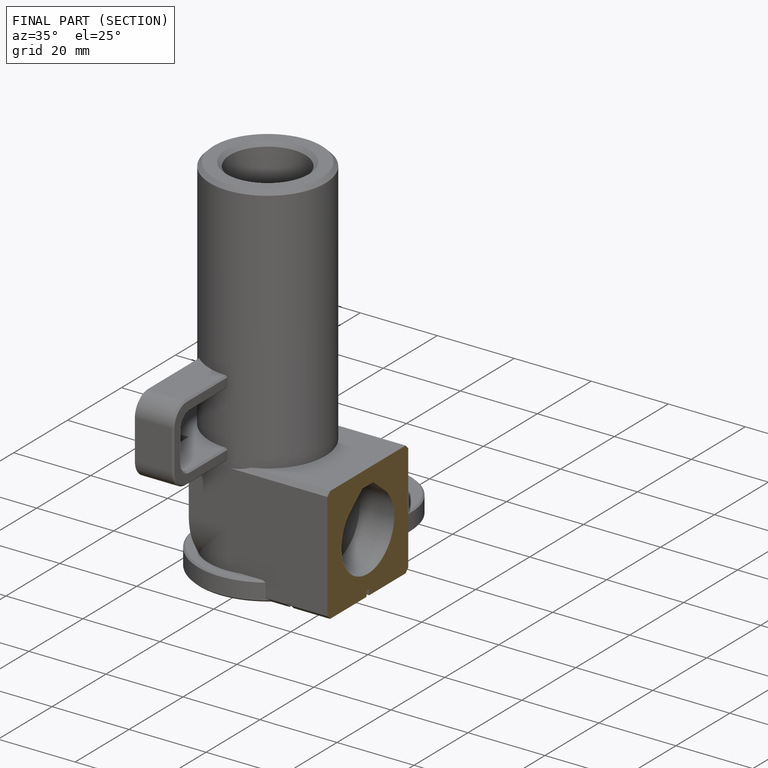
[diagram: finished part — half-section view (interior)]
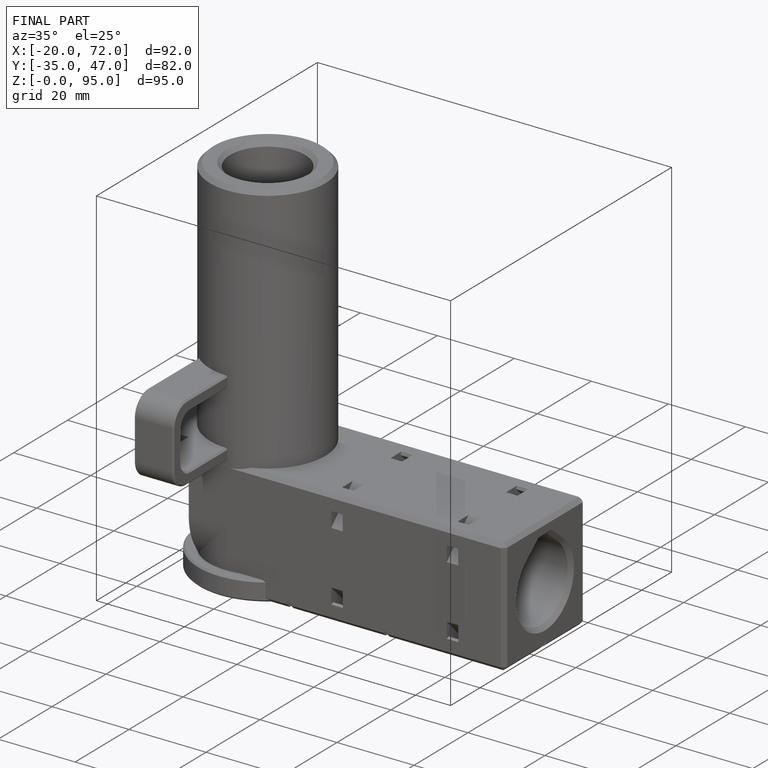
[diagram: finished part — iso view with bounding-box wireframe]
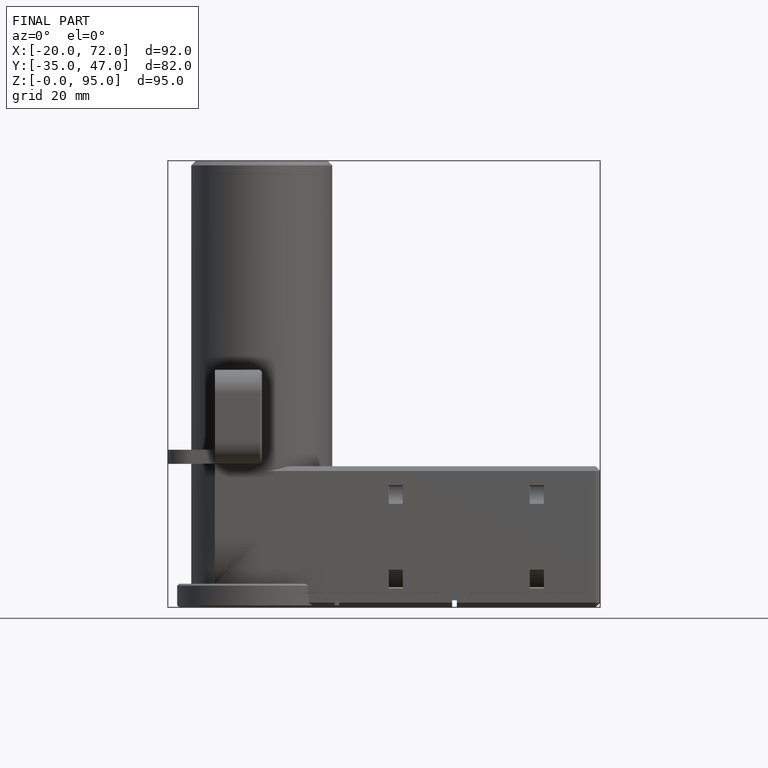
[diagram: finished part — front view with bounding-box wireframe]
